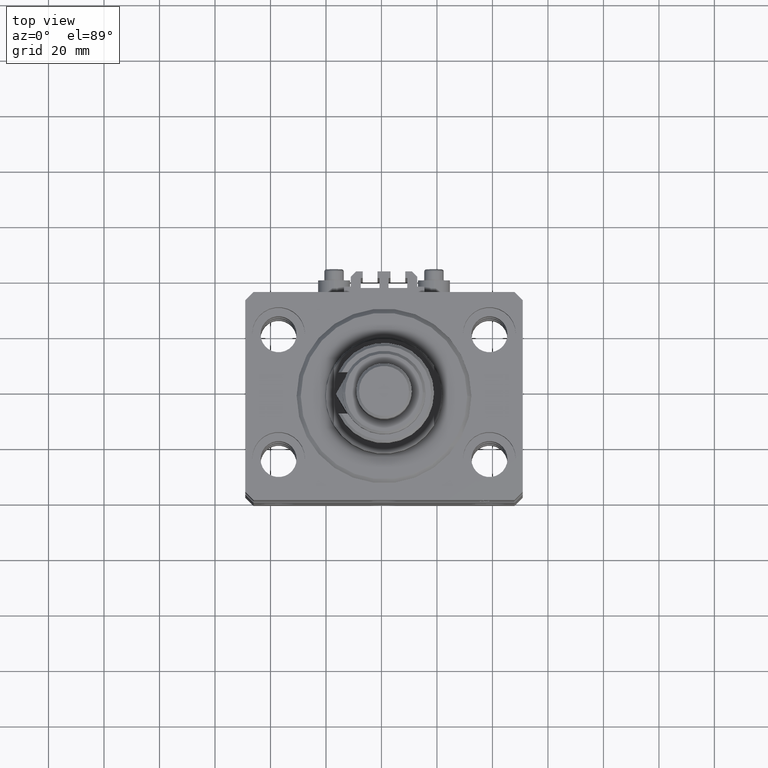
[diagram: clean part render]
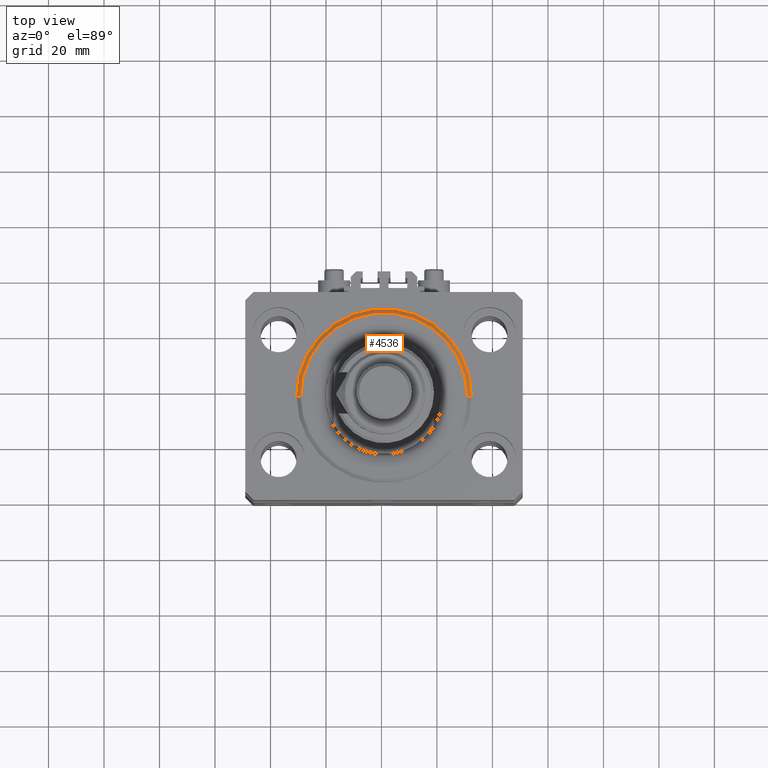
[diagram: same view with one face highlighted and labeled with its STEP entity id]
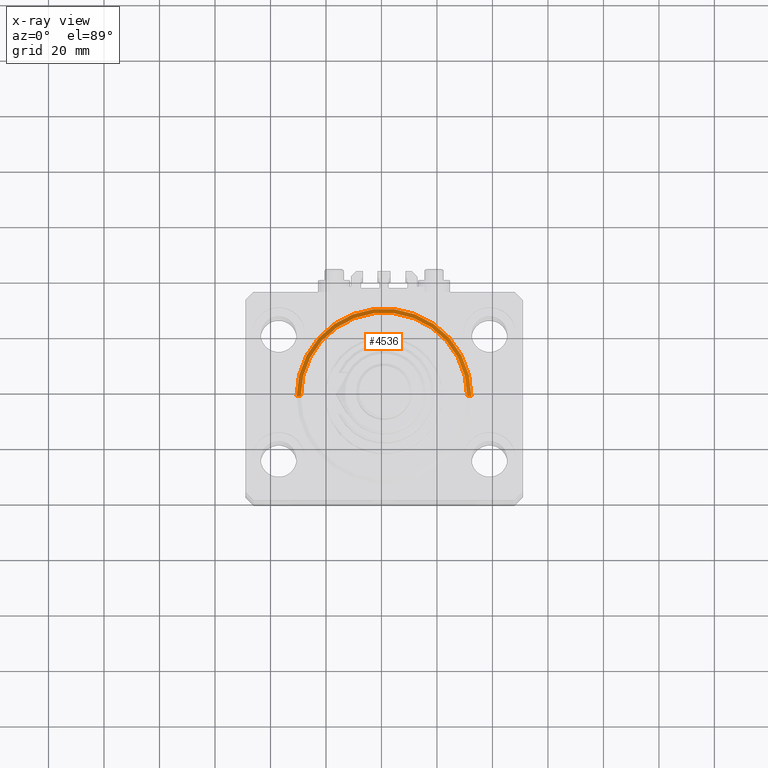
[diagram: x-ray of the same camera — body ghosted, the highlighted face saturated]
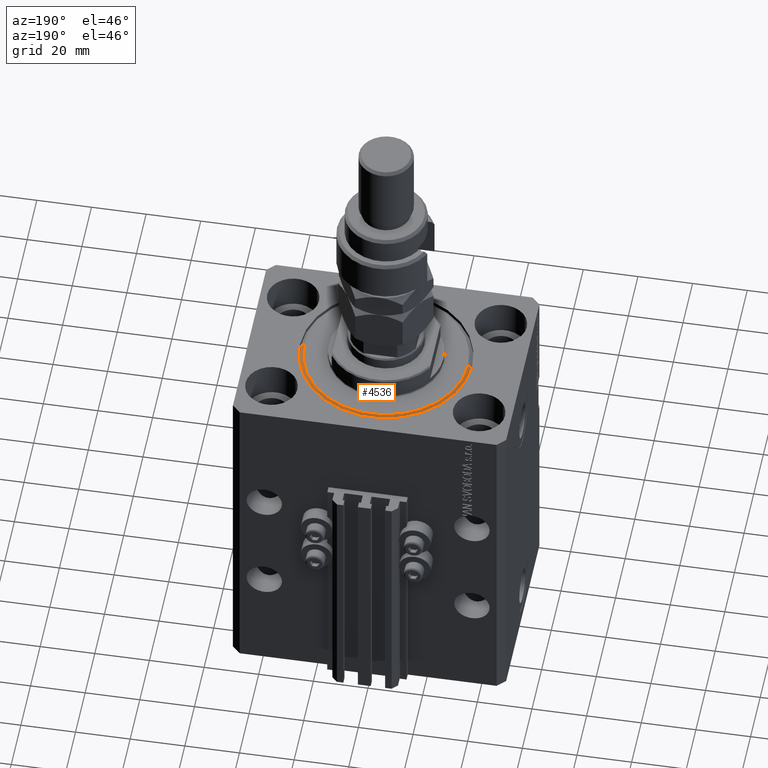
[diagram: same view with one face highlighted and labeled with its STEP entity id]
A machine part, top view. The second image highlights one B-rep face of the part: STEP entity #4536.
The next image is the same camera in x-ray: the body ghosted, the highlighted face saturated — about 0% of this face is hidden behind the body in this view.
A second angle (auxiliary view) of the same face is appended — the face is thin or edge-on in the first view.
In plain terms, the highlighted conical surface has half-angle 45 deg.
Its self-contained STEP definition (entity closure, byte-faithful):
#3669 = CARTESIAN_POINT ( 'NONE',  ( 29.99999999999999289, 0.000000000000000000, 0.000000000000000000 ) ) ;
#4536 = ADVANCED_FACE ( 'NONE', ( #16178 ), #40727, .T. ) ;
#5102 = DIRECTION ( 'NONE',  ( 1.000000000000000000, 0.000000000000000000, 0.000000000000000000 ) ) ;
#5540 = VERTEX_POINT ( 'NONE', #18738 ) ;
#8395 = DIRECTION ( 'NONE',  ( 0.7071067811865491270, 0.000000000000000000, 0.7071067811865459074 ) ) ;
#10159 = DIRECTION ( 'NONE',  ( -0.000000000000000000, -0.000000000000000000, 1.000000000000000000 ) ) ;
#10506 = CARTESIAN_POINT ( 'NONE',  ( 0.000000000000000000, 0.000000000000000000, 1.500000000000001332 ) ) ;
#13017 = EDGE_LOOP ( 'NONE', ( #42482, #35925, #27702, #26992 ) ) ;
#13102 = EDGE_CURVE ( 'NONE', #5540, #28955, #49217, .T. ) ;
#16178 = FACE_OUTER_BOUND ( 'NONE', #13017, .T. ) ;
#16365 = DIRECTION ( 'NONE',  ( -0.7071067811865491270, 8.659560562354952580E-17, 0.7071067811865459074 ) ) ;
#17591 = CIRCLE ( 'NONE', #46742, 31.50000000000000000 ) ;
#18326 = DIRECTION ( 'NONE',  ( 1.000000000000000000, 0.000000000000000000, 0.000000000000000000 ) ) ;
#18472 = CARTESIAN_POINT ( 'NONE',  ( -31.50000000000000000, 0.000000000000000000, 1.500000000000001332 ) ) ;
#18738 = CARTESIAN_POINT ( 'NONE',  ( -29.99999999999999289, 3.765788907378110539E-15, 0.000000000000000000 ) ) ;
#21631 = CARTESIAN_POINT ( 'NONE',  ( 0.000000000000000000, 0.000000000000000000, 1.500000000000001332 ) ) ;
#23145 = LINE ( 'NONE', #23660, #31124 ) ;
#23654 = VERTEX_POINT ( 'NONE', #45270 ) ;
#23660 = CARTESIAN_POINT ( 'NONE',  ( -31.50000000000000000, 3.857637417314162689E-15, 1.500000000000001332 ) ) ;
#26697 = AXIS2_PLACEMENT_3D ( 'NONE', #39536, #37430, #5102 ) ;
#26992 = ORIENTED_EDGE ( 'NONE', *, *, #49452, .F. ) ;
#27013 = VECTOR ( 'NONE', #8395, 1000.000000000000000 ) ;
#27702 = ORIENTED_EDGE ( 'NONE', *, *, #28456, .F. ) ;
#28456 = EDGE_CURVE ( 'NONE', #23654, #30312, #17591, .T. ) ;
#28718 = LINE ( 'NONE', #48556, #27013 ) ;
#28955 = VERTEX_POINT ( 'NONE', #3669 ) ;
#30312 = VERTEX_POINT ( 'NONE', #18472 ) ;
#31124 = VECTOR ( 'NONE', #16365, 1000.000000000000000 ) ;
#33722 = DIRECTION ( 'NONE',  ( -0.000000000000000000, -0.000000000000000000, 1.000000000000000000 ) ) ;
#33894 = DIRECTION ( 'NONE',  ( 1.000000000000000000, 0.000000000000000000, 0.000000000000000000 ) ) ;
#35925 = ORIENTED_EDGE ( 'NONE', *, *, #37815, .T. ) ;
#37430 = DIRECTION ( 'NONE',  ( -0.000000000000000000, -0.000000000000000000, -1.000000000000000000 ) ) ;
#37815 = EDGE_CURVE ( 'NONE', #5540, #30312, #23145, .T. ) ;
#39536 = CARTESIAN_POINT ( 'NONE',  ( 0.000000000000000000, 0.000000000000000000, 0.000000000000000000 ) ) ;
#40727 = CONICAL_SURFACE ( 'NONE', #50709, 31.50000000000000000, 0.7853981633974506105 ) ;
#42482 = ORIENTED_EDGE ( 'NONE', *, *, #13102, .F. ) ;
#45270 = CARTESIAN_POINT ( 'NONE',  ( 31.50000000000000000, 3.857637417314162689E-15, 1.500000000000001332 ) ) ;
#46742 = AXIS2_PLACEMENT_3D ( 'NONE', #10506, #33722, #18326 ) ;
#48556 = CARTESIAN_POINT ( 'NONE',  ( 31.50000000000000000, 0.000000000000000000, 1.500000000000001332 ) ) ;
#49217 = CIRCLE ( 'NONE', #26697, 29.99999999999999289 ) ;
#49452 = EDGE_CURVE ( 'NONE', #28955, #23654, #28718, .T. ) ;
#50709 = AXIS2_PLACEMENT_3D ( 'NONE', #21631, #10159, #33894 ) ;